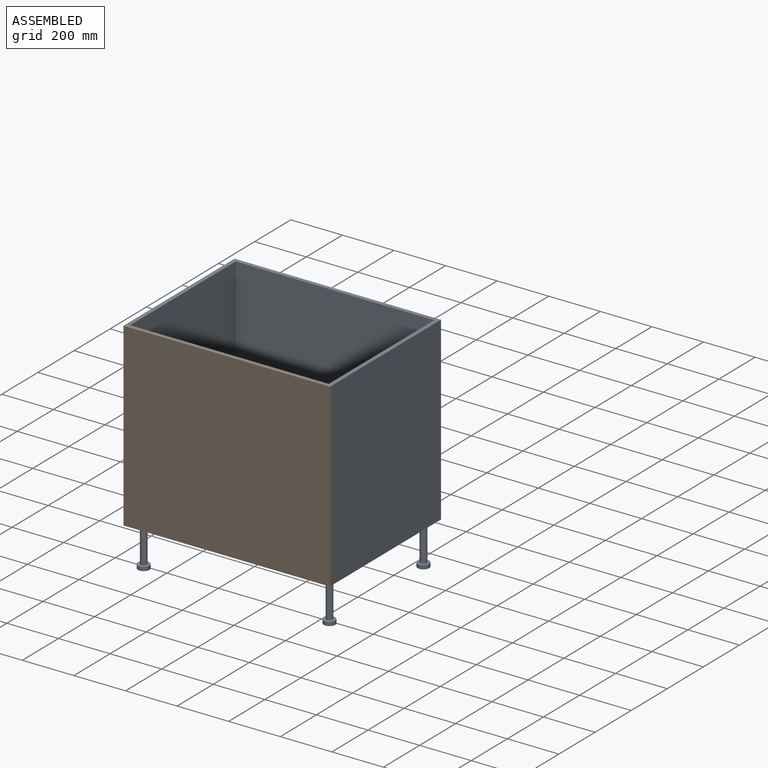
[diagram: assembled view]
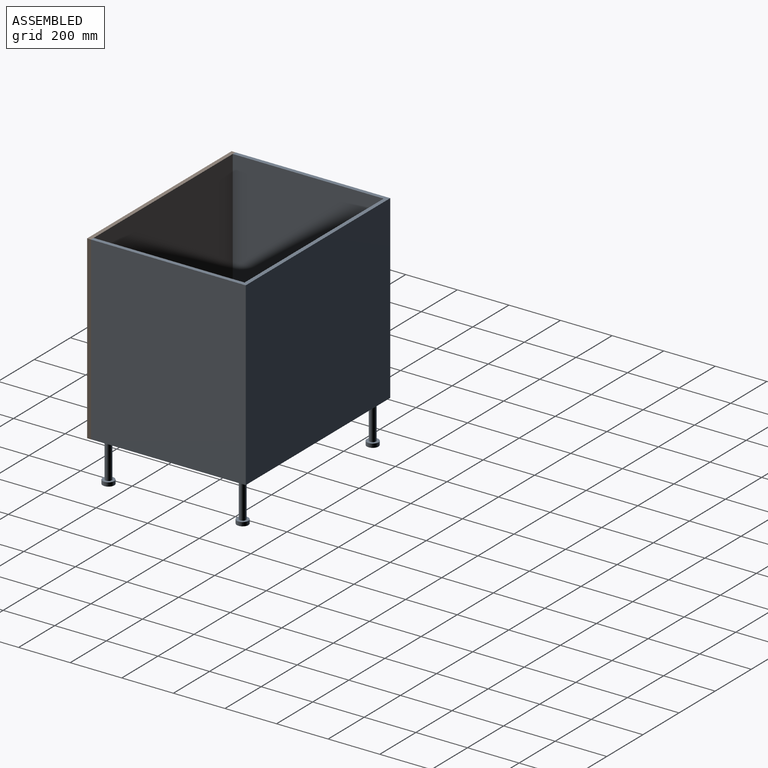
[diagram: assembled view, second angle]
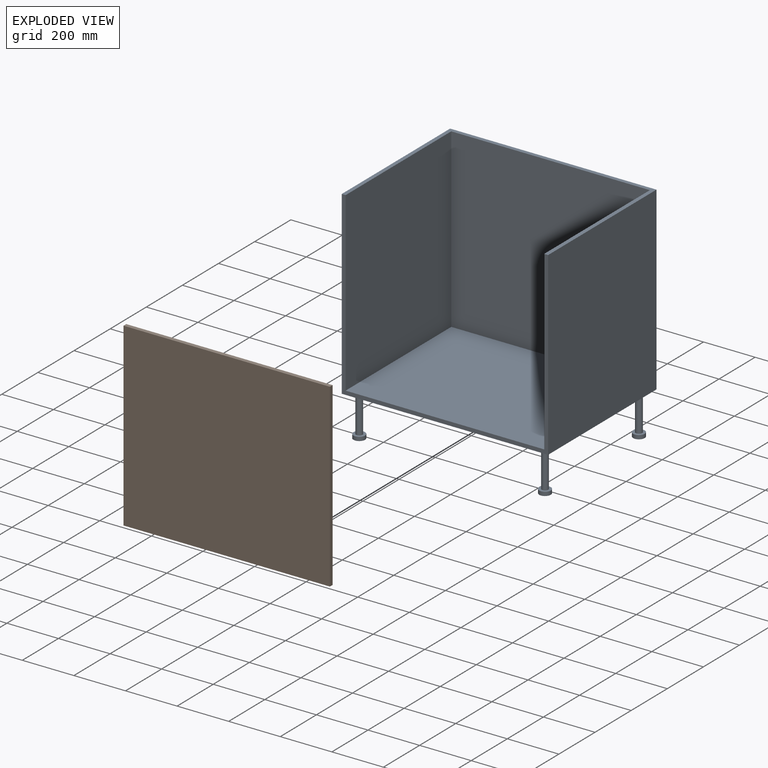
[diagram: exploded view]
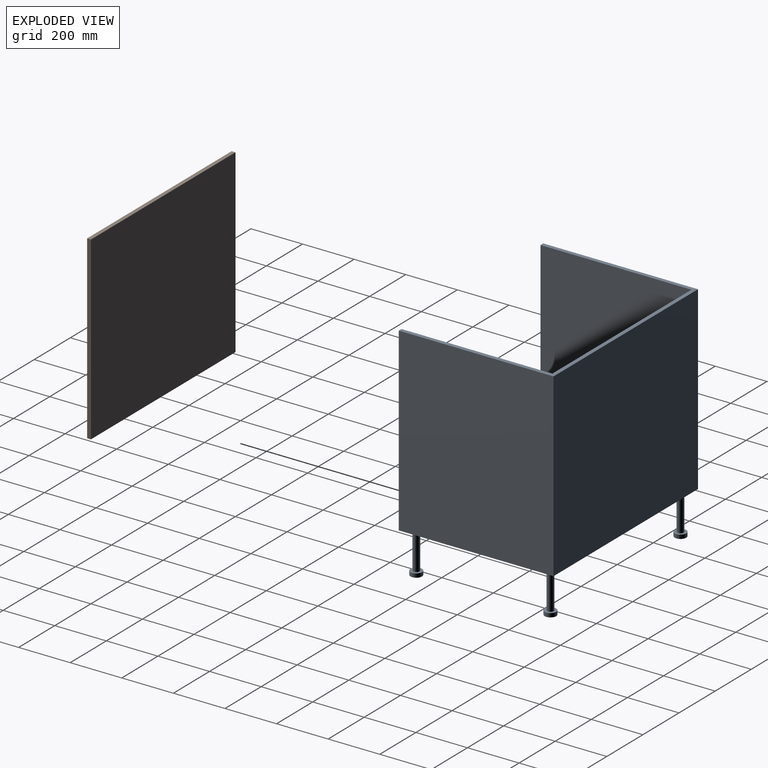
[diagram: exploded view, second angle]
ASSEMBLY  parts=2 mates=3
PART A: 26 faces, bbox 800x600x860 mm
  f0: plane 700x600mm, normal (-1,0,0), area 420000mm2, adj f1,f3,f5,f6
  f1: plane 800x700mm, normal (0,-1,0), area 32550mm2, adj f0,f2,f4,f5,f6,f7,f8
  f2: plane 700x600mm, normal (1,0,0), area 420000mm2, adj f1,f3,f5,f6
  f3: plane 800x700mm, normal (0,1,0), area 560000mm2, adj f0,f2,f5,f6
  f4: plane 770x585mm, normal (0,0,1), area 450450mm2, adj f1,f7,f8,f9
  f5: plane 800x600mm, normal (0,0,-1), area 478036.5mm2, adj f0,f1,f2,f3,f10,f14,f18,f22
  f6: plane 800x600mm, normal (0,0,1), area 29550mm2, adj f0,f1,f2,f3,f7,f8,f9
  f7: plane 685x585mm, normal (-1,0,0), area 400725mm2, adj f1,f4,f6,f9
  f8: plane 685x585mm, normal (1,0,0), area 400725mm2, adj f1,f4,f6,f9
  f9: plane 770x685mm, normal (0,-1,0), area 527450mm2, adj f4,f6,f7,f8
  f10: cylinder r=12.5mm len=145mm, axis (0,0,1), area 11388.3mm2, adj f5,f12
  f11: cylinder r=22.5mm len=45mm, axis (0,0,-1), area 2120.6mm2, adj f12,f13
  f12: plane 45x45mm, normal (0,0,1), area 1099.6mm2, adj f10,f11
  f13: plane 45x45mm, normal (0,0,-1), area 1590.4mm2, adj f11
  f14: cylinder r=12.5mm len=145mm, axis (0,0,1), area 11388.3mm2, adj f5,f16
  f15: cylinder r=22.5mm len=45mm, axis (0,0,-1), area 2120.6mm2, adj f16,f17
  f16: plane 45x45mm, normal (0,0,1), area 1099.6mm2, adj f14,f15
  f17: plane 45x45mm, normal (0,0,-1), area 1590.4mm2, adj f15
  f18: cylinder r=12.5mm len=145mm, axis (0,0,1), area 11388.3mm2, adj f5,f20
  f19: cylinder r=22.5mm len=45mm, axis (0,0,-1), area 2120.6mm2, adj f20,f21
  f20: plane 45x45mm, normal (0,0,1), area 1099.6mm2, adj f18,f19
  f21: plane 45x45mm, normal (0,0,-1), area 1590.4mm2, adj f19
  f22: cylinder r=12.5mm len=145mm, axis (0,0,1), area 11388.3mm2, adj f5,f24
  f23: cylinder r=22.5mm len=45mm, axis (0,0,-1), area 2120.6mm2, adj f24,f25
  f24: plane 45x45mm, normal (0,0,1), area 1099.6mm2, adj f22,f23
  f25: plane 45x45mm, normal (0,0,-1), area 1590.4mm2, adj f23
PART B: 6 faces, bbox 800x15x700 mm
  f0: plane 800x15mm, normal (0,0,1), area 12000mm2, adj f1,f3,f4,f5
  f1: plane 700x15mm, normal (-1,0,0), area 10500mm2, adj f0,f2,f4,f5
  f2: plane 800x15mm, normal (0,0,-1), area 12000mm2, adj f1,f3,f4,f5
  f3: plane 700x15mm, normal (1,0,0), area 10500mm2, adj f0,f2,f4,f5
  f4: plane 800x700mm, normal (0,-1,0), area 560000mm2, adj f0,f1,f2,f3
  f5: plane 800x700mm, normal (0,1,0), area 560000mm2, adj f0,f1,f2,f3
PLACE A t=(-1096.34,212.88,-325.29)mm
PLACE B t=(-1096.34,212.88,-325.29)mm
MATE planar A.f1 <-> B.f5  axis (0,-1,0) through (-1096.34,-87.12,63.18)mm
MATE planar B.f3 <-> A.f2  axis (1,0,0) through (-696.34,-94.62,184.71)mm
MATE planar A.f6 <-> B.f0  axis (0,0,1) through (-696.34,-87.12,534.71)mm
